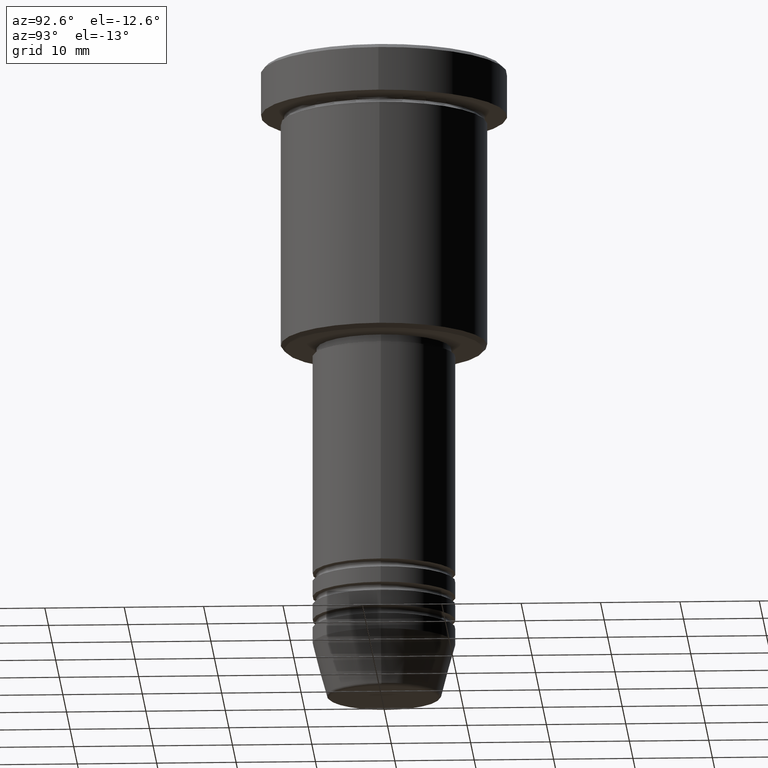
[diagram: clean part render]
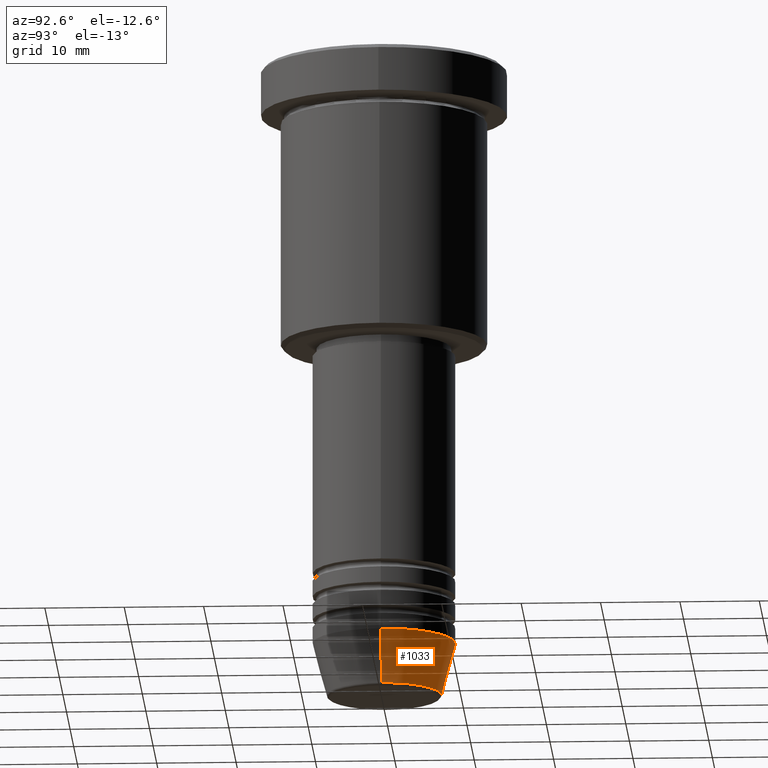
[diagram: same view with one face highlighted and labeled with its STEP entity id]
A machine part, auxiliary view. The second image highlights one B-rep face of the part: STEP entity #1033.
In plain terms, the highlighted conical surface has half-angle 15 deg.
Its self-contained STEP definition (entity closure, byte-faithful):
#13 = LINE ( 'NONE', #454, #594 ) ;
#60 = DIRECTION ( 'NONE',  ( -0.000000000000000000, -0.000000000000000000, 1.000000000000000000 ) ) ;
#142 = CIRCLE ( 'NONE', #812, 7.223655072137193045 ) ;
#195 = DIRECTION ( 'NONE',  ( -0.2588190451025213501, 3.169619151431772337E-17, 0.9659258262890680902 ) ) ;
#273 = DIRECTION ( 'NONE',  ( 0.2588190451025213501, 0.000000000000000000, 0.9659258262890680902 ) ) ;
#322 = ORIENTED_EDGE ( 'NONE', *, *, #673, .F. ) ;
#344 = CIRCLE ( 'NONE', #658, 9.000000000000000000 ) ;
#348 = EDGE_LOOP ( 'NONE', ( #684, #1120, #322, #457 ) ) ;
#413 = CONICAL_SURFACE ( 'NONE', #1081, 9.000000000000000000, 0.2617993877991500740 ) ;
#428 = DIRECTION ( 'NONE',  ( 1.000000000000000000, 0.000000000000000000, 0.000000000000000000 ) ) ;
#448 = VERTEX_POINT ( 'NONE', #541 ) ;
#454 = CARTESIAN_POINT ( 'NONE',  ( 9.000000000000000000, 0.000000000000000000, -74.00000000000000000 ) ) ;
#457 = ORIENTED_EDGE ( 'NONE', *, *, #1177, .F. ) ;
#472 = CARTESIAN_POINT ( 'NONE',  ( 0.000000000000000000, 0.000000000000000000, -80.62940952255124216 ) ) ;
#479 = DIRECTION ( 'NONE',  ( 1.000000000000000000, 0.000000000000000000, 0.000000000000000000 ) ) ;
#487 = CARTESIAN_POINT ( 'NONE',  ( 0.000000000000000000, 0.000000000000000000, -74.00000000000000000 ) ) ;
#541 = CARTESIAN_POINT ( 'NONE',  ( 9.000000000000000000, 0.000000000000000000, -74.00000000000000000 ) ) ;
#594 = VECTOR ( 'NONE', #273, 1000.000000000000000 ) ;
#658 = AXIS2_PLACEMENT_3D ( 'NONE', #487, #680, #479 ) ;
#673 = EDGE_CURVE ( 'NONE', #448, #946, #344, .T. ) ;
#680 = DIRECTION ( 'NONE',  ( -0.000000000000000000, -0.000000000000000000, 1.000000000000000000 ) ) ;
#684 = ORIENTED_EDGE ( 'NONE', *, *, #794, .T. ) ;
#729 = CARTESIAN_POINT ( 'NONE',  ( 7.223655072137193045, 0.000000000000000000, -80.62940952255124216 ) ) ;
#750 = CARTESIAN_POINT ( 'NONE',  ( -7.223655072137193045, 9.934123627281767082E-16, -80.62940952255124216 ) ) ;
#759 = VECTOR ( 'NONE', #195, 1000.000000000000000 ) ;
#791 = FACE_OUTER_BOUND ( 'NONE', #348, .T. ) ;
#794 = EDGE_CURVE ( 'NONE', #1160, #1126, #142, .T. ) ;
#802 = CARTESIAN_POINT ( 'NONE',  ( -9.000000000000000000, 1.102182119232617714E-15, -74.00000000000000000 ) ) ;
#812 = AXIS2_PLACEMENT_3D ( 'NONE', #472, #849, #854 ) ;
#849 = DIRECTION ( 'NONE',  ( -0.000000000000000000, -0.000000000000000000, 1.000000000000000000 ) ) ;
#854 = DIRECTION ( 'NONE',  ( 1.000000000000000000, 0.000000000000000000, 0.000000000000000000 ) ) ;
#890 = CARTESIAN_POINT ( 'NONE',  ( 0.000000000000000000, 0.000000000000000000, -74.00000000000000000 ) ) ;
#913 = CARTESIAN_POINT ( 'NONE',  ( -9.000000000000000000, 1.102182119232617714E-15, -74.00000000000000000 ) ) ;
#946 = VERTEX_POINT ( 'NONE', #802 ) ;
#1033 = ADVANCED_FACE ( 'NONE', ( #791 ), #413, .T. ) ;
#1075 = EDGE_CURVE ( 'NONE', #1126, #946, #1102, .T. ) ;
#1081 = AXIS2_PLACEMENT_3D ( 'NONE', #890, #60, #428 ) ;
#1102 = LINE ( 'NONE', #913, #759 ) ;
#1120 = ORIENTED_EDGE ( 'NONE', *, *, #1075, .T. ) ;
#1126 = VERTEX_POINT ( 'NONE', #750 ) ;
#1160 = VERTEX_POINT ( 'NONE', #729 ) ;
#1177 = EDGE_CURVE ( 'NONE', #1160, #448, #13, .T. ) ;